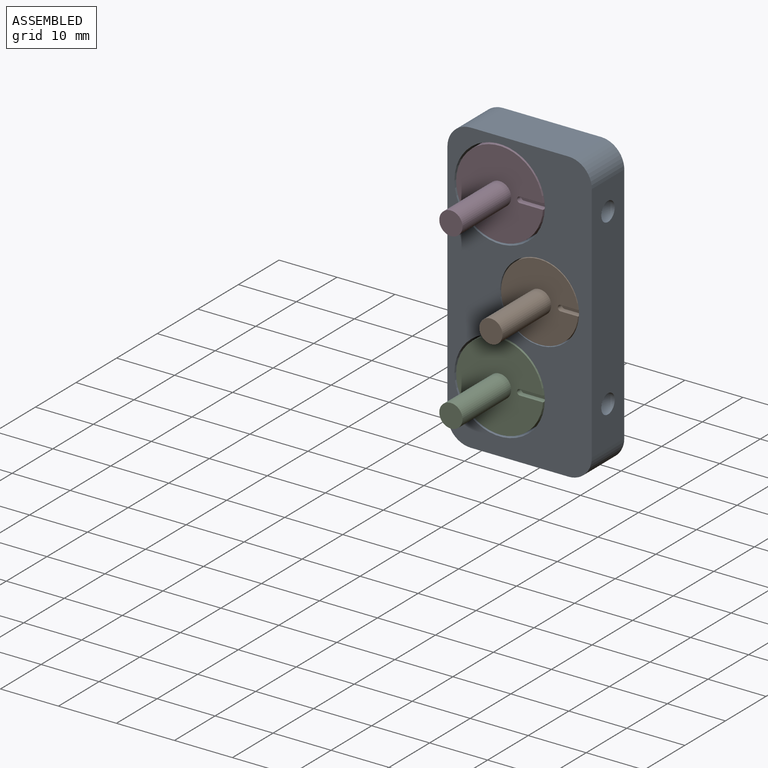
[diagram: assembled view]
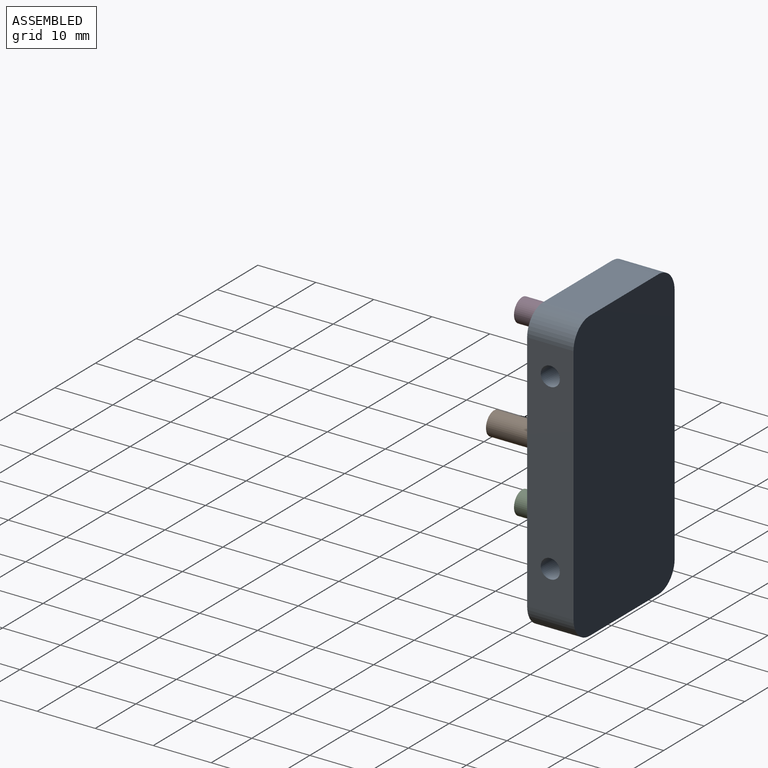
[diagram: assembled view, second angle]
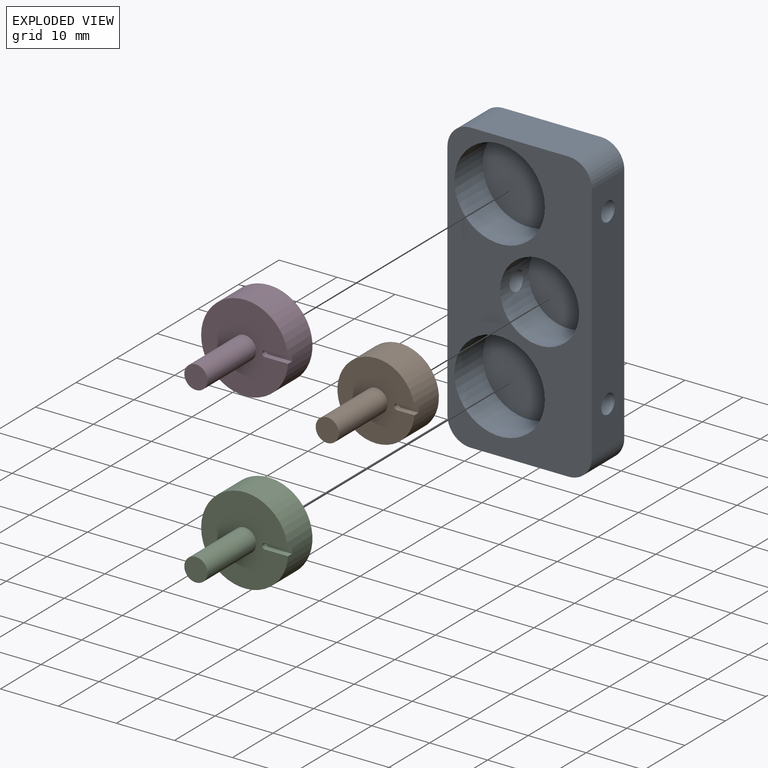
[diagram: exploded view]
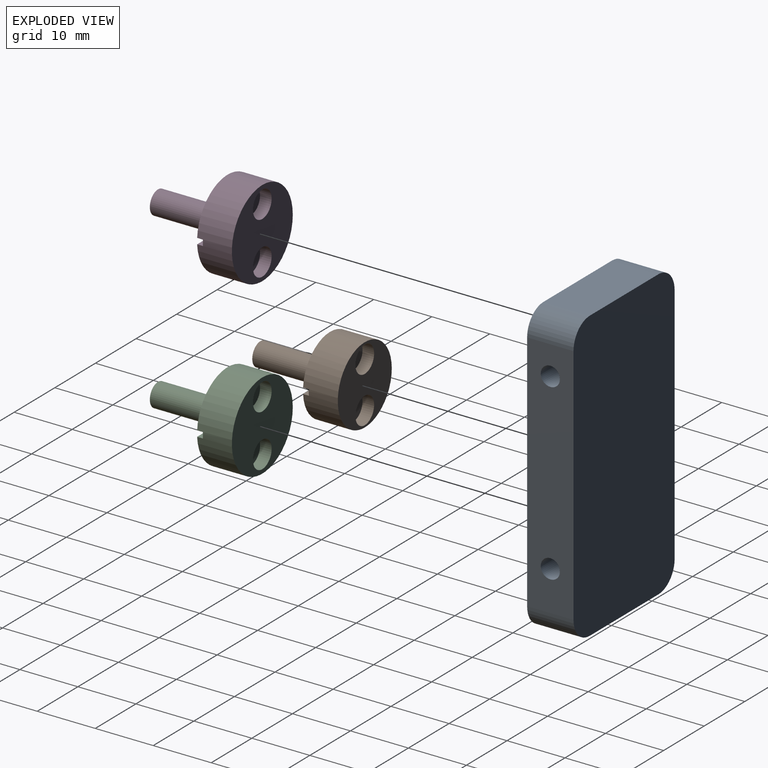
[diagram: exploded view, second angle]
ASSEMBLY  parts=4 mates=6
PART A: 19 faces, bbox 24.9x8x49.9 mm
  f0: cylinder r=6.8mm len=13.6mm, axis (0,-1,0), area 290.4mm2, adj f11,f14,f18
  f1: cylinder r=7.8mm len=15.6mm, axis (0,-1,0), area 334.5mm2, adj f11,f13,f17
  f2: cylinder r=7.8mm len=15.6mm, axis (0,-1,0), area 334.5mm2, adj f11,f15,f16
  f3: plane 16.9x8mm, normal (0,0,1), area 135.2mm2, adj f4,f10,f11,f12
  f4: cylinder r=4mm len=8mm, axis (0,1,0), area 50.3mm2, adj f3,f5,f11,f12
  f5: plane 41.9x8mm, normal (-1,0,0), area 326.6mm2, adj f4,f6,f11,f12,f18
  f6: cylinder r=4mm len=8mm, axis (0,1,0), area 50.3mm2, adj f5,f7,f11,f12
  f7: plane 16.9x8mm, normal (0,0,-1), area 135.2mm2, adj f6,f8,f11,f12
  f8: cylinder r=4mm len=8mm, axis (0,1,0), area 50.3mm2, adj f7,f9,f11,f12
  f9: plane 41.9x8mm, normal (1,0,0), area 318.1mm2, adj f8,f10,f11,f12,f16,f17
  f10: cylinder r=4mm len=8mm, axis (0,1,0), area 50.3mm2, adj f3,f9,f11,f12
  f11: plane 49.9x24.9mm, normal (0,-1,0), area 701.2mm2, adj f0,f1,f2,f3,f4,f5,f6,f7
  f12: plane 49.9x24.9mm, normal (0,1,0), area 1228.8mm2, adj f3,f4,f5,f6,f7,f8,f9,f10
  f13: plane 15.6x15.6mm, normal (0,-1,0), area 191.1mm2, adj f1
  f14: plane 13.6x13.6mm, normal (0,-1,0), area 145.3mm2, adj f0
  f15: plane 15.6x15.6mm, normal (0,-1,0), area 191.1mm2, adj f2
  f16: cylinder r=1.65mm len=8.28mm, axis (1,0,0), area 84.9mm2, adj f2,f9
  f17: cylinder r=1.65mm len=8.28mm, axis (1,0,0), area 84.9mm2, adj f1,f9
  f18: cylinder r=1.65mm len=9.3mm, axis (-1,0,0), area 95.4mm2, adj f0,f5
PART B: 13 faces, bbox 13.3x18x13.3 mm
  f0: plane 13.3x13.28mm, normal (0,-1,0), area 123mm2, adj f1,f3,f9,f10,f11
  f1: cylinder r=6.65mm len=13.3mm, axis (0,1,0), area 249.7mm2, adj f0,f2,f9,f10,f12
  f2: plane 13.3x13.3mm, normal (0,1,0), area 105.7mm2, adj f1,f5,f7
  f3: cylinder r=2mm len=12mm, axis (0,1,0), area 150.8mm2, adj f0,f4
  f4: plane 4x4mm, normal (0,-1,0), area 12.6mm2, adj f3
  f5: cylinder r=2.3mm len=4.6mm, axis (0,1,0), area 28.9mm2, adj f2,f6
  f6: plane 4.6x4.6mm, normal (0,1,0), area 16.6mm2, adj f5
  f7: cylinder r=2.3mm len=4.6mm, axis (0,1,0), area 28.9mm2, adj f2,f8
  f8: plane 4.6x4.6mm, normal (0,1,0), area 16.6mm2, adj f7
  f9: plane 3x1mm, normal (-1,0,0), area 3mm2, adj f0,f1,f11,f12
  f10: plane 3x1mm, normal (1,0,0), area 3mm2, adj f0,f1,f11,f12
  f11: cylinder r=0.5mm len=1mm, axis (0,-1,0), area 1.6mm2, adj f0,f9,f10,f12
  f12: plane 3.52x1mm, normal (0,-1,0), area 3.4mm2, adj f1,f9,f10,f11
PART C: 13 faces, bbox 15x18x15 mm
  f0: cylinder r=7.5mm len=15mm, axis (0,1,0), area 281.7mm2, adj f1,f2,f9,f11,f12
  f1: plane 15x14.98mm, normal (0,-1,0), area 159.8mm2, adj f0,f3,f9,f10,f11
  f2: plane 15x15mm, normal (0,1,0), area 143.5mm2, adj f0,f5,f7
  f3: cylinder r=2mm len=12mm, axis (0,1,0), area 150.8mm2, adj f1,f4
  f4: plane 4x4mm, normal (0,-1,0), area 12.6mm2, adj f3
  f5: cylinder r=2.3mm len=4.6mm, axis (0,1,0), area 28.9mm2, adj f2,f6
  f6: plane 4.6x4.6mm, normal (0,1,0), area 16.6mm2, adj f5
  f7: cylinder r=2.3mm len=4.6mm, axis (0,1,0), area 28.9mm2, adj f2,f8
  f8: plane 4.6x4.6mm, normal (0,1,0), area 16.6mm2, adj f7
  f9: plane 3.98x1mm, normal (1,0,0), area 4mm2, adj f0,f1,f10,f12
  f10: cylinder r=0.5mm len=1mm, axis (0,-1,0), area 1.6mm2, adj f1,f9,f11,f12
  f11: plane 3.98x1mm, normal (-1,0,0), area 4mm2, adj f0,f1,f10,f12
  f12: plane 4.5x1mm, normal (0,-1,0), area 4.4mm2, adj f0,f9,f10,f11
PART D: same geometry as C
PLACE A t=(-4.75,-19.42,-1.73)mm
PLACE B rot(axis=(0,1,0),90deg) t=(11.15,-21.42,-25.73)mm
PLACE C rot(axis=(0,1,0),90deg) t=(4.25,-21.42,-40.73)mm
PLACE D rot(axis=(0,1,0),90deg) t=(4.25,-21.42,-10.73)mm
MATE cylindrical D.f0 <-> A.f2  axis (0,1,0) through (4.25,-24.42,-10.73)mm
MATE planar B.f0 <-> A.f0  axis (0,-1,0) through (11.01,-27.42,-25.73)mm
MATE cylindrical B.f1 <-> A.f0  axis (0,1,0) through (11.15,-24.42,-25.73)mm
MATE cylindrical C.f0 <-> A.f1  axis (0,1,0) through (4.25,-24.42,-40.73)mm
MATE planar A.f2 <-> D.f1  axis (0,-1,0) through (4.25,-27.42,-10.73)mm
MATE planar C.f1 <-> A.f1  axis (0,-1,0) through (4.11,-27.42,-40.73)mm
